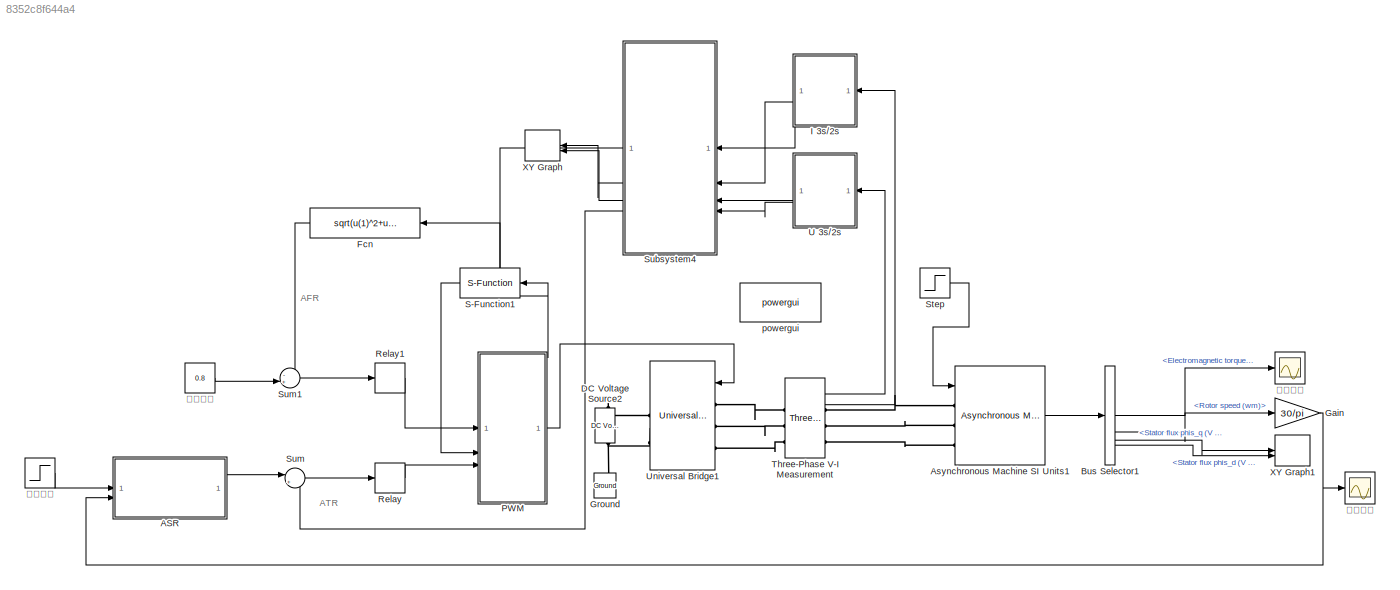
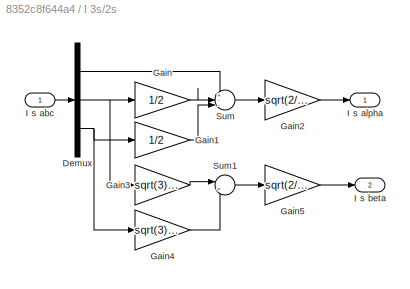
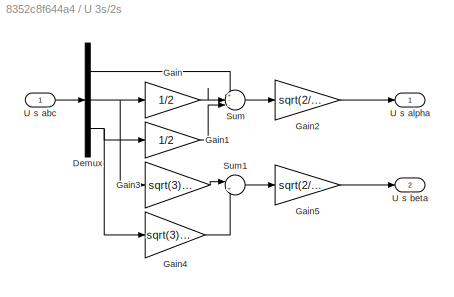
MODEL slx_8352c8f644a4
KIND model
CONFIG AbsTol = auto
CONFIG EnableMultiTasking = off
CONFIG FixedStep = auto
CONFIG MaxStep = auto
CONFIG MinStep = auto
CONFIG RelTol = 1e-3
CONFIG SampleTimeConstraint = Unconstrained
CONFIG SolverName = ode23tb
CONFIG StartTime = 0.0
CONFIG StopTime = 0.5
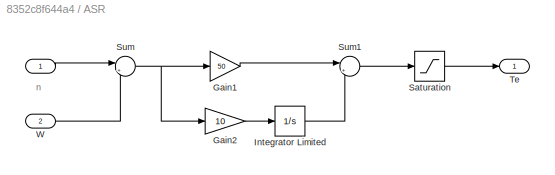
BLOCK [SubSystem] ASR
BLOCK [Inport] ASR/ 
BLOCK [Gain] ASR/Gain1
  Gain = 50
BLOCK [Gain] ASR/Gain2
  Gain = 10
  OutMax = [200]
  OutMin = [-200]
BLOCK [Integrator] ASR/Integrator Limited
  LimitOutput = on
  LowerSaturationLimit = -120
  UpperSaturationLimit = 120
BLOCK [Saturate] ASR/Saturation
  LowerLimit = -120
  UpperLimit = 120
BLOCK [Sum] ASR/Sum
  Inputs = |+-
BLOCK [Sum] ASR/Sum1
  Inputs = |++
BLOCK [Outport] ASR/Te
  VectorParamsAs1DForOutWhenUnconnected = off
BLOCK [Inport] ASR/W
  Port = 2
BLOCK [Reference] Asynchronous Machine SI Units1  REF=spsAsynchronousMachineSIUnitsLib/Asynchronous Machine
SI Units
  SourceBlock = spsAsynchronousMachineSIUnitsLib/Asynchronous Machine\nSI Units
  SourceType = Asynchronous Machine
BLOCK [BusSelector] Bus Selector1
  OutputSignals = Mechanical.Electromagnetic torque Te (N*m),Mechanical.Rotor speed (wm),Stator measurements.Stator flux phis_q (V s),Stator measurements.Stator flux phis_d (V s)
BLOCK [Reference] DC Voltage Source2  REF=spsDCVoltageSourceLib/DC Voltage Source
  LibrarySourceBlock = sps_lib/Sources/DC Voltage Source
  NameLocation = left
  SourceBlock = spsDCVoltageSourceLib/DC Voltage Source
  SourceType = DC Voltage Source
BLOCK [Fcn] Fcn
  Expr = sqrt(u(1)^2+u(2)^2)
BLOCK [Gain] Gain
  Gain = 30/pi
BLOCK [Reference] Ground  REF=spsGroundLib/Ground
  LibrarySourceBlock = sps_lib/Utilities/Ground
  NameLocation = right
  SourceBlock = spsGroundLib/Ground
  SourceType = Ground
BLOCK [SubSystem] I 3s//2s
BLOCK [Demux] I 3s//2s/Demux
  Outputs = 3
BLOCK [Gain] I 3s//2s/Gain
  Gain = 1/2
BLOCK [Gain] I 3s//2s/Gain1
  Gain = 1/2
BLOCK [Gain] I 3s//2s/Gain2
  Gain = sqrt(2/3)
BLOCK [Gain] I 3s//2s/Gain3
  Gain = sqrt(3)/2
BLOCK [Gain] I 3s//2s/Gain4
  Gain = sqrt(3)/2
BLOCK [Gain] I 3s//2s/Gain5
  Gain = sqrt(2/3)
BLOCK [Inport] I 3s//2s/I s abc
BLOCK [Outport] I 3s//2s/I s alpha
  VectorParamsAs1DForOutWhenUnconnected = off
BLOCK [Outport] I 3s//2s/I s beta
  Port = 2
  VectorParamsAs1DForOutWhenUnconnected = off
BLOCK [Sum] I 3s//2s/Sum
  Inputs = +--|
BLOCK [Sum] I 3s//2s/Sum1
  Inputs = |+-
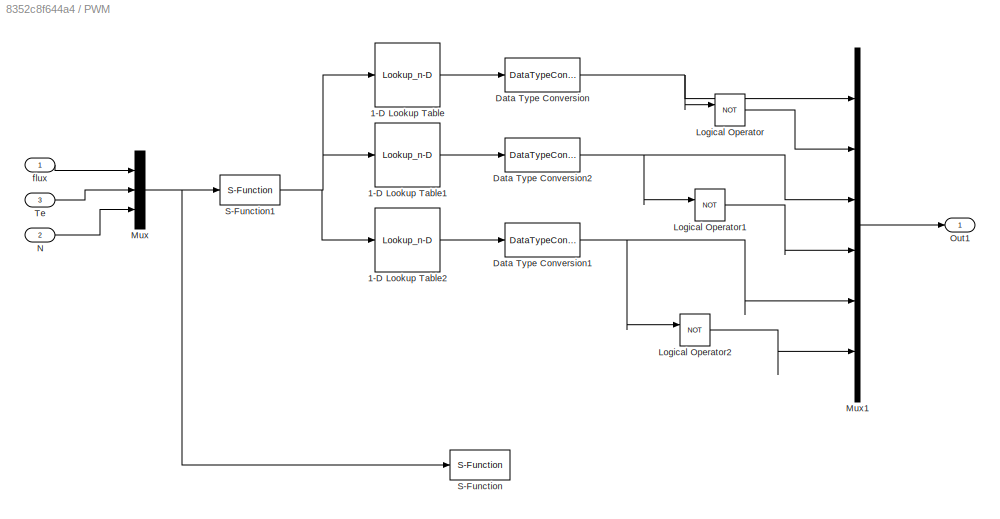
BLOCK [SubSystem] PWM
BLOCK [Lookup_n-D] PWM/1-D Lookup Table
  BreakpointsForDimension1 = [1 2 3 4 5 6]
  InputPortMap = u0
  InternalRulePriority = Speed
  NumberOfTableDimensions = 1
  RndMeth = Simplest
  Table = [1 1 1 0 0 0]
BLOCK [Lookup_n-D] PWM/1-D Lookup Table1
  BreakpointsForDimension1 = [1 2 3 4 5 6]
  InputPortMap = u0
  InternalRulePriority = Speed
  NumberOfTableDimensions = 1
  RndMeth = Simplest
  Table = [1 0 0 1 1 0]
BLOCK [Lookup_n-D] PWM/1-D Lookup Table2
  BreakpointsForDimension1 = [1 2 3 4 5 6]
  InputPortMap = u0
  InternalRulePriority = Speed
  NumberOfTableDimensions = 1
  RndMeth = Simplest
  Table = [0 1 0 1 0 1]
BLOCK [DataTypeConversion] PWM/Data Type Conversion
  OutDataTypeStr = boolean
  RndMeth = Floor
  SaturateOnIntegerOverflow = off
BLOCK [DataTypeConversion] PWM/Data Type Conversion1
  OutDataTypeStr = boolean
  RndMeth = Floor
  SaturateOnIntegerOverflow = off
BLOCK [DataTypeConversion] PWM/Data Type Conversion2
  OutDataTypeStr = boolean
  RndMeth = Floor
  SaturateOnIntegerOverflow = off
BLOCK [Logic] PWM/Logical Operator
  AllPortsSameDT = off
  Operator = NOT
  OutDataTypeStr = boolean
BLOCK [Logic] PWM/Logical Operator1
  AllPortsSameDT = off
  Operator = NOT
  OutDataTypeStr = boolean
BLOCK [Logic] PWM/Logical Operator2
  AllPortsSameDT = off
  Operator = NOT
  OutDataTypeStr = boolean
BLOCK [Mux] PWM/Mux
  DisplayOption = bar
  Inputs = 3
BLOCK [Mux] PWM/Mux1
  DisplayOption = bar
  Inputs = 6
BLOCK [Inport] PWM/N
  Port = 2
BLOCK [Outport] PWM/Out1
BLOCK [S-Function] PWM/S-Function
  Commented = on
  EnableBusSupport = off
  FunctionName = switch_U
  NameLocation = top
  SFcnIsStateOwnerBlock = off
  SFunctionDeploymentMode = off
BLOCK [S-Function] PWM/S-Function1
  EnableBusSupport = off
  FunctionName = sw
  SFcnIsStateOwnerBlock = off
  SFunctionDeploymentMode = off
BLOCK [Inport] PWM/Te
  Port = 3
BLOCK [Inport] PWM/flux
BLOCK [Relay] Relay
  OffSwitchValue = -0.5
  OnSwitchValue = 0.5
BLOCK [Relay] Relay1
  OffSwitchValue = -0.001
  OnSwitchValue = 0.001
BLOCK [S-Function] S-Function1
  EnableBusSupport = off
  FunctionName = sector3
  SFcnIsStateOwnerBlock = off
  SFunctionDeploymentMode = off
BLOCK [Step] Step
  After = 50
  Before = 50
  SampleTime = 0
  Time = 0
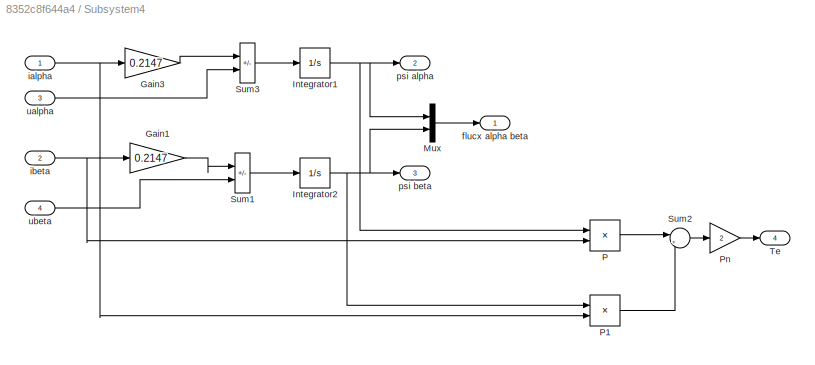
BLOCK [SubSystem] Subsystem4
BLOCK [Gain] Subsystem4/Gain1
  Gain = 0.2147
BLOCK [Gain] Subsystem4/Gain3
  Gain = 0.2147
BLOCK [Integrator] Subsystem4/Integrator1
BLOCK [Integrator] Subsystem4/Integrator2
BLOCK [Mux] Subsystem4/Mux
  DisplayOption = bar
  Inputs = 2
BLOCK [Product] Subsystem4/P
  Inputs = **
BLOCK [Product] Subsystem4/P1
  Inputs = **
BLOCK [Gain] Subsystem4/Pn
  Gain = 2
BLOCK [Sum] Subsystem4/Sum1
  IconShape = rectangular
  Inputs = |-+
BLOCK [Sum] Subsystem4/Sum2
  Inputs = |+-
BLOCK [Sum] Subsystem4/Sum3
  IconShape = rectangular
  Inputs = |-+
BLOCK [Outport] Subsystem4/Te
  Port = 4
  VectorParamsAs1DForOutWhenUnconnected = off
BLOCK [Outport] Subsystem4/flucx alpha beta
BLOCK [Inport] Subsystem4/ialpha
BLOCK [Inport] Subsystem4/ibeta
  Port = 2
BLOCK [Outport] Subsystem4/psi alpha
  Port = 2
BLOCK [Outport] Subsystem4/psi beta
  Port = 3
BLOCK [Inport] Subsystem4/ualpha
  Port = 3
BLOCK [Inport] Subsystem4/ubeta
  Port = 4
BLOCK [Sum] Sum
  Inputs = |+-
BLOCK [Sum] Sum1
  Inputs = -+|
BLOCK [Reference] Three-Phase V-I Measurement  REF=spsThreePhaseVIMeasurementLib/Three-Phase
V-I Measurement
  LibrarySourceBlock = sps_lib/Sensors and Measurements/Three-Phase\nV-I Measurement
  SourceBlock = spsThreePhaseVIMeasurementLib/Three-Phase\nV-I Measurement
  SourceType = Three-Phase VI Measurement
BLOCK [SubSystem] U 3s//2s
BLOCK [Demux] U 3s//2s/Demux
  Outputs = 3
BLOCK [Gain] U 3s//2s/Gain
  Gain = 1/2
BLOCK [Gain] U 3s//2s/Gain1
  Gain = 1/2
BLOCK [Gain] U 3s//2s/Gain2
  Gain = sqrt(2/3)
BLOCK [Gain] U 3s//2s/Gain3
  Gain = sqrt(3)/2
BLOCK [Gain] U 3s//2s/Gain4
  Gain = sqrt(3)/2
BLOCK [Gain] U 3s//2s/Gain5
  Gain = sqrt(2/3)
BLOCK [Sum] U 3s//2s/Sum
  Inputs = +--|
BLOCK [Sum] U 3s//2s/Sum1
  Inputs = |+-
BLOCK [Inport] U 3s//2s/U s abc
BLOCK [Outport] U 3s//2s/U s alpha
  VectorParamsAs1DForOutWhenUnconnected = off
BLOCK [Outport] U 3s//2s/U s beta
  Port = 2
  VectorParamsAs1DForOutWhenUnconnected = off
BLOCK [Reference] Universal Bridge1  REF=spsUniversalBridgeLib/Universal Bridge
  LibrarySourceBlock = sps_lib/Power Electronics/Universal Bridge
  SourceBlock = spsUniversalBridgeLib/Universal Bridge
  SourceType = Universal Bridge
BLOCK [Record] XY Graph
  CompatibilityTag = XY
  FileSettingsInternal = {"entries":[{"content":{"excelSettings":{"content":{},"type":"Streamout.ExcelSettings"}},"type":"Streamout.FileSettingStorage","uuid":"d99a5585-4551-4ee5-a23c-574eb21537c6"}],"packageUris":["http://schema.mathworks.com/mf0/streamout_blocks/R2020a"],"version":"1.0"}
  Layout = [1 1]
  SignalsInternal = {"entries":[{"content":{"signals":[{"content":{"blockPath":["kongzhi/XY Graph"],"dimensions":[1],"domain":"kongzhi/XY Graph","lineColor":"#a2142f","plots":[1],"port":1,"sid":[""],"signalID":22656,"signalName":"Subsystem4:2"},"type":"RecordBlkView.Signal","uuid":"df6e7023-f9b9-436d-a626-336ee013b6ea"},{"content":{"blockPath":["kongzhi/XY Graph"],"dimensions":[1],"domain":"kongzhi/XY Graph","lineCol...<+345ch>
  VisualizationBindings = {"xyplotplugin":{"info":[{"series":[{"bindingParametersList":[{"parameter":"X-Axis","signalID":22656,"signalName":"Subsystem4:2"},{"parameter":"Y-Axis","signalID":22660,"signalName":"Subsystem4:3"}],"seriesID":30182}],"subplotID":1}]}}
BLOCK [Record] XY Graph1
  CompatibilityTag = XY
  FileSettingsInternal = {"entries":[{"content":{"excelSettings":{"content":{},"type":"Streamout.ExcelSettings"}},"type":"Streamout.FileSettingStorage","uuid":"2f48a670-b858-471d-9210-6afec38b2273"}],"packageUris":["http://schema.mathworks.com/mf0/streamout_blocks/R2020a"],"version":"1.0"}
  Layout = [1 1]
  SignalsInternal = {"entries":[{"content":{"signals":[{"content":{"blockPath":["kongzhi/XY Graph1"],"dimensions":[1],"domain":"kongzhi/XY Graph1","lineColor":"#a2142f","plots":[1],"port":1,"sid":[""],"signalID":22664,"signalName":"<Stator flux phis_q (V s)>"},"type":"RecordBlkView.Signal","uuid":"a525e989-c708-4338-98a2-6f3b374b03e2"},{"content":{"blockPath":["kongzhi/XY Graph1"],"dimensions":[1],"domain":"kongzhi/X...<+377ch>
  VisualizationBindings = {"xyplotplugin":{"info":[{"series":[{"bindingParametersList":[{"parameter":"X-Axis","signalID":22664,"signalName":"<Stator flux phis_q (V s)>"},{"parameter":"Y-Axis","signalID":22668,"signalName":"<Stator flux phis_d (V s)>"}],"seriesID":31724}],"subplotID":1}]}}
BLOCK [Reference] powergui  REF=sps_lib/powergui
  Priority = 1
  SourceBlock = sps_lib/powergui
  SourceType = PSB option menu block
BLOCK [Constant] 给定磁链
  Value = 0.8
BLOCK [Step] 给定转速
  After = 1000
  Before = 1000
  SampleTime = 0
  Time = 0
  VectorParams1D = off
BLOCK [Scope] 输出转矩
  Floating = off
  NumInputPorts = 1
  ScopeSpecificationString = Simulink.scopes.TimeScopeBlockCfg('CurrentConfiguration', extmgr.ConfigurationSet(extmgr.Configuration('Core','General UI',true,'FigureColor',[1 1 1]),extmgr.Configuration('Core','Source UI',true),extmgr.Configuration('Sources','WiredSimulink',true,'DataLoggingVariableName','ScopeData1'),extmgr.Configuration('Visuals','Time Domain',true,'SerializedDisplays',{struct('MinYLimReal','-15.0625','MaxYLi...<+1575ch>
BLOCK [Scope] 输出转速
  Floating = off
  NumInputPorts = 1
  ScopeSpecificationString = Simulink.scopes.TimeScopeBlockCfg('CurrentConfiguration', extmgr.ConfigurationSet(extmgr.Configuration('Core','General UI',true,'FigureColor',[1 1 1]),extmgr.Configuration('Core','Source UI',true),extmgr.Configuration('Sources','WiredSimulink',true),extmgr.Configuration('Visuals','Time Domain',true,'SerializedDisplays',{struct('MinYLimReal','-140.04945','MaxYLimReal','1128.20508','YLabelReal','','...<+1540ch>
ANNOTATION (root): AFR
ANNOTATION (root): ATR
ANNOTATION ASR: n
LINE ASR/ :1 -> ASR/Sum:1
LINE ASR/Gain1:1 -> ASR/Sum1:1
LINE ASR/Gain2:1 -> ASR/Integrator Limited:1
LINE ASR/Integrator Limited:1 -> ASR/Sum1:2
LINE ASR/Saturation:1 -> ASR/Te:1
LINE ASR/Sum1:1 -> ASR/Saturation:1
NET ASR/Sum:1 -> ASR/Gain1:1, ASR/Gain2:1
LINE ASR/W:1 -> ASR/Sum:2
LINE ASR:1 -> Sum:1
LINE Asynchronous Machine SI Units1:1 -> Bus Selector1:1
LINE Bus Selector1:1 -> 输出转矩:1
LINE Bus Selector1:2 -> Gain:1
LINE Bus Selector1:3 -> XY Graph1:1
LINE Bus Selector1:4 -> XY Graph1:2
LINE Fcn:1 -> Sum1:1
NET Gain:1 -> ASR:2, 输出转速:1
LINE I 3s//2s/Demux:1 -> I 3s//2s/Sum:1
NET I 3s//2s/Demux:2 -> I 3s//2s/Gain3:1, I 3s//2s/Gain:1
NET I 3s//2s/Demux:3 -> I 3s//2s/Gain1:1, I 3s//2s/Gain4:1
LINE I 3s//2s/Gain1:1 -> I 3s//2s/Sum:3
LINE I 3s//2s/Gain2:1 -> I 3s//2s/I s alpha:1
LINE I 3s//2s/Gain3:1 -> I 3s//2s/Sum1:1
LINE I 3s//2s/Gain4:1 -> I 3s//2s/Sum1:2
LINE I 3s//2s/Gain5:1 -> I 3s//2s/I s beta:1
LINE I 3s//2s/Gain:1 -> I 3s//2s/Sum:2
LINE I 3s//2s/I s abc:1 -> I 3s//2s/Demux:1
LINE I 3s//2s/Sum1:1 -> I 3s//2s/Gain5:1
LINE I 3s//2s/Sum:1 -> I 3s//2s/Gain2:1
LINE I 3s//2s:1 -> Subsystem4:1
LINE I 3s//2s:2 -> Subsystem4:2
LINE PWM/1-D Lookup Table1:1 -> PWM/Data Type Conversion2:1
LINE PWM/1-D Lookup Table2:1 -> PWM/Data Type Conversion1:1
LINE PWM/1-D Lookup Table:1 -> PWM/Data Type Conversion:1
NET PWM/Data Type Conversion1:1 -> PWM/Logical Operator2:1, PWM/Mux1:5
NET PWM/Data Type Conversion2:1 -> PWM/Logical Operator1:1, PWM/Mux1:3
NET PWM/Data Type Conversion:1 -> PWM/Logical Operator:1, PWM/Mux1:1
LINE PWM/Logical Operator1:1 -> PWM/Mux1:4
LINE PWM/Logical Operator2:1 -> PWM/Mux1:6
LINE PWM/Logical Operator:1 -> PWM/Mux1:2
LINE PWM/Mux1:1 -> PWM/Out1:1
NET PWM/Mux:1 -> PWM/S-Function1:1, PWM/S-Function:1
LINE PWM/N:1 -> PWM/Mux:3
NET PWM/S-Function1:1 -> PWM/1-D Lookup Table1:1, PWM/1-D Lookup Table2:1, PWM/1-D Lookup Table:1
LINE PWM/Te:1 -> PWM/Mux:2
LINE PWM/flux:1 -> PWM/Mux:1
LINE PWM:1 -> Universal Bridge1:1
LINE Relay1:1 -> PWM:1
LINE Relay:1 -> PWM:3
LINE S-Function1:1 -> PWM:2
LINE Step:1 -> Asynchronous Machine SI Units1:1
LINE Subsystem4/Gain1:1 -> Subsystem4/Sum1:1
LINE Subsystem4/Gain3:1 -> Subsystem4/Sum3:1
NET Subsystem4/Integrator1:1 -> Subsystem4/Mux:1, Subsystem4/P:1, Subsystem4/psi alpha:1
NET Subsystem4/Integrator2:1 -> Subsystem4/Mux:2, Subsystem4/P1:1, Subsystem4/psi beta:1
LINE Subsystem4/Mux:1 -> Subsystem4/flucx alpha beta:1
LINE Subsystem4/P1:1 -> Subsystem4/Sum2:2
LINE Subsystem4/P:1 -> Subsystem4/Sum2:1
LINE Subsystem4/Pn:1 -> Subsystem4/Te:1
LINE Subsystem4/Sum1:1 -> Subsystem4/Integrator2:1
LINE Subsystem4/Sum2:1 -> Subsystem4/Pn:1
LINE Subsystem4/Sum3:1 -> Subsystem4/Integrator1:1
NET Subsystem4/ialpha:1 -> Subsystem4/Gain3:1, Subsystem4/P1:2
NET Subsystem4/ibeta:1 -> Subsystem4/Gain1:1, Subsystem4/P:2
LINE Subsystem4/ualpha:1 -> Subsystem4/Sum3:2
LINE Subsystem4/ubeta:1 -> Subsystem4/Sum1:2
NET Subsystem4:1 -> Fcn:1, S-Function1:1
LINE Subsystem4:2 -> XY Graph:1
LINE Subsystem4:3 -> XY Graph:2
LINE Subsystem4:4 -> Sum:2
LINE Sum1:1 -> Relay1:1
LINE Sum:1 -> Relay:1
LINE Three-Phase V-I Measurement:1 -> U 3s//2s:1
LINE Three-Phase V-I Measurement:2 -> I 3s//2s:1
LINE U 3s//2s/Demux:1 -> U 3s//2s/Sum:1
NET U 3s//2s/Demux:2 -> U 3s//2s/Gain3:1, U 3s//2s/Gain:1
NET U 3s//2s/Demux:3 -> U 3s//2s/Gain1:1, U 3s//2s/Gain4:1
LINE U 3s//2s/Gain1:1 -> U 3s//2s/Sum:3
LINE U 3s//2s/Gain2:1 -> U 3s//2s/U s alpha:1
LINE U 3s//2s/Gain3:1 -> U 3s//2s/Sum1:1
LINE U 3s//2s/Gain4:1 -> U 3s//2s/Sum1:2
LINE U 3s//2s/Gain5:1 -> U 3s//2s/U s beta:1
LINE U 3s//2s/Gain:1 -> U 3s//2s/Sum:2
LINE U 3s//2s/Sum1:1 -> U 3s//2s/Gain5:1
LINE U 3s//2s/Sum:1 -> U 3s//2s/Gain2:1
LINE U 3s//2s/U s abc:1 -> U 3s//2s/Demux:1
LINE U 3s//2s:1 -> Subsystem4:3
LINE U 3s//2s:2 -> Subsystem4:4
LINE 给定磁链:1 -> Sum1:2
LINE 给定转速:1 -> ASR:1
PLINE Asynchronous Machine SI Units1:LConn1 -- Three-Phase V-I Measurement:RConn1
PLINE Asynchronous Machine SI Units1:LConn2 -- Three-Phase V-I Measurement:RConn2
PLINE Asynchronous Machine SI Units1:LConn3 -- Three-Phase V-I Measurement:RConn3
PNET net1: DC Voltage Source2:LConn1 -- Ground:LConn1 -- Universal Bridge1:RConn2
PLINE DC Voltage Source2:RConn1 -- Universal Bridge1:RConn1
PLINE Three-Phase V-I Measurement:LConn1 -- Universal Bridge1:LConn1
PLINE Three-Phase V-I Measurement:LConn2 -- Universal Bridge1:LConn2
PLINE Three-Phase V-I Measurement:LConn3 -- Universal Bridge1:LConn3
note: NET lines group one-source signal fan-out (src -> all destinations, sorted); 1:1 wires keep LINE; PNET lines group multi-terminal physical nets as a canonical sorted terminal list (undirected conserving connections); 2-terminal nets keep the pairwise PLINE form
